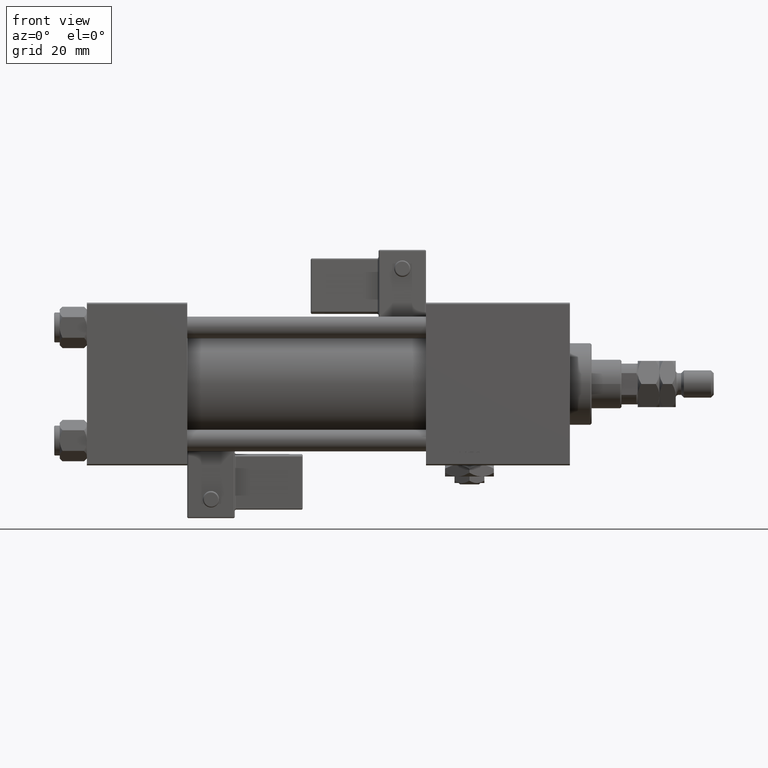
[diagram: clean part render]
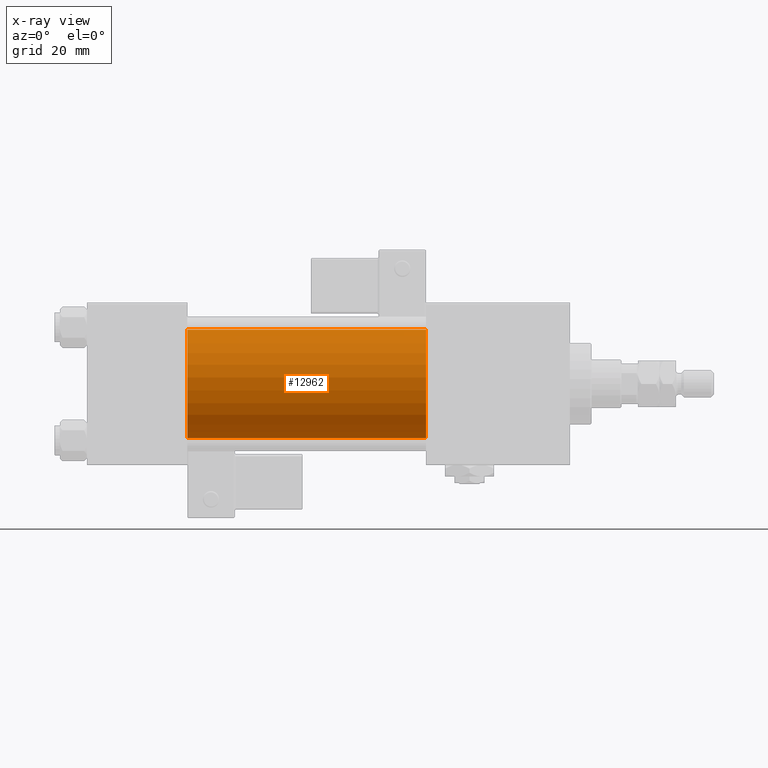
[diagram: x-ray — body ghosted, one internal face saturated and labeled with its STEP entity id]
A machine part, front view, then the same camera in x-ray: the body is ghosted and one INTERNAL B-rep face — a face not visible from any outside direction — is saturated and labeled: STEP entity #12962.
In plain terms, the highlighted cylindrical surface (partial cylindrical patch) has radius 20 mm, axis along (-1, -0, -0).
Its self-contained STEP definition (entity closure, byte-faithful):
#375 = EDGE_CURVE ( 'NONE', #27576, #26376, #2984, .T. ) ;
#1854 = CIRCLE ( 'NONE', #33328, 20.00000000000000000 ) ;
#2938 = CYLINDRICAL_SURFACE ( 'NONE', #21381, 20.00000000000000000 ) ;
#2984 = CIRCLE ( 'NONE', #20989, 20.00000000000000000 ) ;
#4696 = ORIENTED_EDGE ( 'NONE', *, *, #6400, .F. ) ;
#6095 = CARTESIAN_POINT ( 'NONE',  ( 125.0000000000000000, -1.527916156705042519E-16, -20.00000000000000000 ) ) ;
#6400 = EDGE_CURVE ( 'NONE', #28162, #27576, #16021, .T. ) ;
#8671 = DIRECTION ( 'NONE',  ( -1.000000000000000000, -0.000000000000000000, -0.000000000000000000 ) ) ;
#9712 = EDGE_LOOP ( 'NONE', ( #23402, #34365, #27135, #4696 ) ) ;
#12962 = ADVANCED_FACE ( 'NONE', ( #41505 ), #2938, .F. ) ;
#15333 = VECTOR ( 'NONE', #8671, 1000.000000000000000 ) ;
#15735 = DIRECTION ( 'NONE',  ( -1.000000000000000000, -0.000000000000000000, -0.000000000000000000 ) ) ;
#15879 = CARTESIAN_POINT ( 'NONE',  ( 125.0000000000000000, -2.602085213965210642E-15, 0.000000000000000000 ) ) ;
#16021 = LINE ( 'NONE', #28683, #37403 ) ;
#17683 = CARTESIAN_POINT ( 'NONE',  ( 125.0000000000000000, -1.527916156705042519E-16, -20.00000000000000000 ) ) ;
#20121 = VERTEX_POINT ( 'NONE', #6095 ) ;
#20989 = AXIS2_PLACEMENT_3D ( 'NONE', #31669, #26890, #39854 ) ;
#21381 = AXIS2_PLACEMENT_3D ( 'NONE', #15879, #50238, #47411 ) ;
#23402 = ORIENTED_EDGE ( 'NONE', *, *, #23762, .T. ) ;
#23762 = EDGE_CURVE ( 'NONE', #28162, #20121, #1854, .T. ) ;
#26376 = VERTEX_POINT ( 'NONE', #42558 ) ;
#26890 = DIRECTION ( 'NONE',  ( 1.000000000000000000, 0.000000000000000000, 0.000000000000000000 ) ) ;
#27135 = ORIENTED_EDGE ( 'NONE', *, *, #375, .F. ) ;
#27576 = VERTEX_POINT ( 'NONE', #41665 ) ;
#28162 = VERTEX_POINT ( 'NONE', #41527 ) ;
#28683 = CARTESIAN_POINT ( 'NONE',  ( 125.0000000000000000, -2.602085213965210642E-15, 20.00000000000000000 ) ) ;
#28800 = DIRECTION ( 'NONE',  ( 0.000000000000000000, 0.000000000000000000, -1.000000000000000000 ) ) ;
#31669 = CARTESIAN_POINT ( 'NONE',  ( 37.00000000000000000, -2.602085213965210642E-15, 0.000000000000000000 ) ) ;
#33328 = AXIS2_PLACEMENT_3D ( 'NONE', #54720, #46277, #28800 ) ;
#34365 = ORIENTED_EDGE ( 'NONE', *, *, #49432, .T. ) ;
#37403 = VECTOR ( 'NONE', #15735, 1000.000000000000000 ) ;
#39854 = DIRECTION ( 'NONE',  ( 0.000000000000000000, 0.000000000000000000, -1.000000000000000000 ) ) ;
#41505 = FACE_OUTER_BOUND ( 'NONE', #9712, .T. ) ;
#41527 = CARTESIAN_POINT ( 'NONE',  ( 125.0000000000000000, -2.602085213965210642E-15, 20.00000000000000000 ) ) ;
#41665 = CARTESIAN_POINT ( 'NONE',  ( 37.00000000000000000, -2.602085213965210642E-15, 20.00000000000000000 ) ) ;
#42558 = CARTESIAN_POINT ( 'NONE',  ( 37.00000000000000000, -1.527916156705042519E-16, -20.00000000000000000 ) ) ;
#46277 = DIRECTION ( 'NONE',  ( 1.000000000000000000, 0.000000000000000000, 0.000000000000000000 ) ) ;
#47270 = LINE ( 'NONE', #17683, #15333 ) ;
#47411 = DIRECTION ( 'NONE',  ( 0.000000000000000000, 0.000000000000000000, 1.000000000000000000 ) ) ;
#49432 = EDGE_CURVE ( 'NONE', #20121, #26376, #47270, .T. ) ;
#50238 = DIRECTION ( 'NONE',  ( -1.000000000000000000, -0.000000000000000000, -0.000000000000000000 ) ) ;
#54720 = CARTESIAN_POINT ( 'NONE',  ( 125.0000000000000000, -2.602085213965210642E-15, 0.000000000000000000 ) ) ;